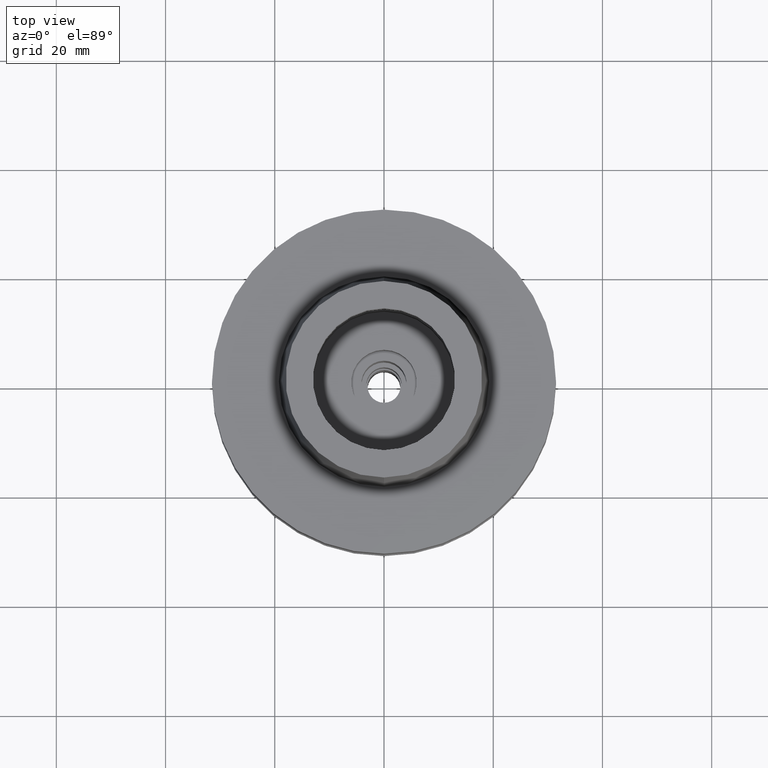
[diagram: clean part render]
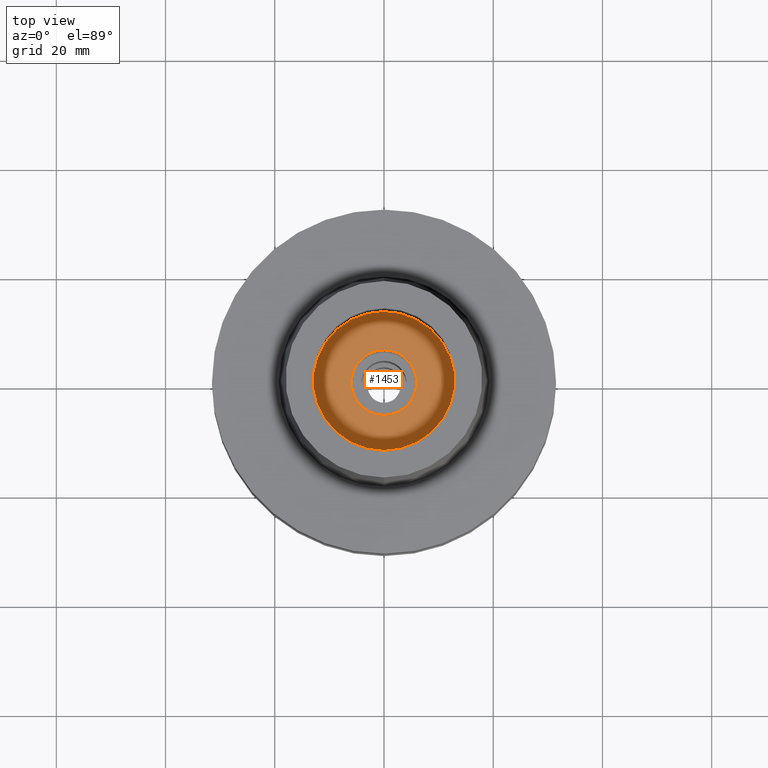
[diagram: same view with one face highlighted and labeled with its STEP entity id]
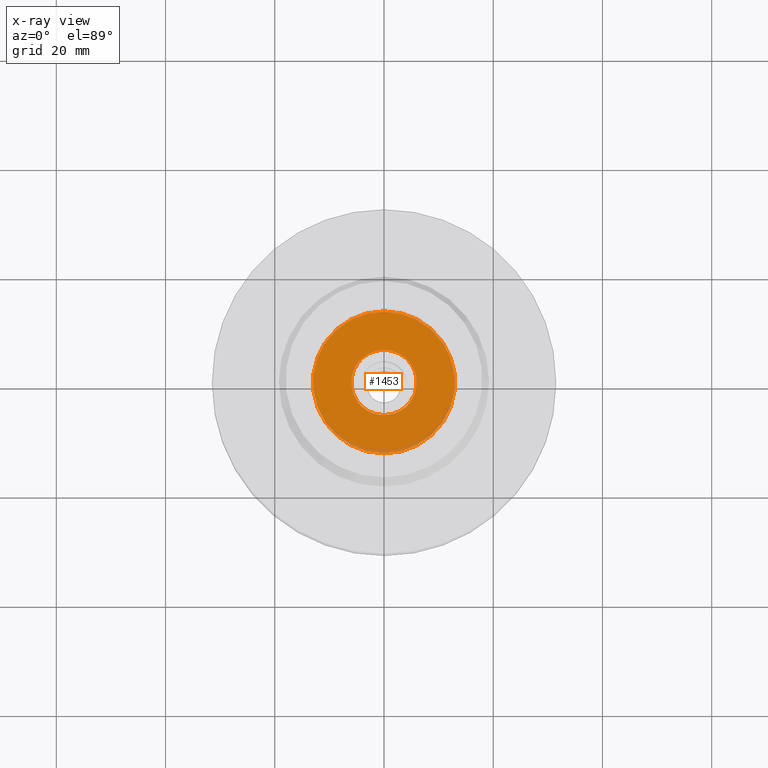
[diagram: x-ray of the same camera — body ghosted, the highlighted face saturated]
A machine part, top view. The second image highlights one B-rep face of the part: STEP entity #1453.
The next image is the same camera in x-ray: the body ghosted, the highlighted face saturated — about 4% of this face is hidden behind the body in this view.
In plain terms, the highlighted planar face has unit normal (0, 0, -1).
Its self-contained STEP definition (entity closure, byte-faithful):
#582=CARTESIAN_POINT('',(0.E0,0.E0,-9.95E0));
#583=DIRECTION('',(0.E0,0.E0,-1.E0));
#584=DIRECTION('',(0.E0,-1.E0,0.E0));
#585=AXIS2_PLACEMENT_3D('',#582,#583,#584);
#590=CARTESIAN_POINT('',(0.E0,0.E0,-9.95E0));
#591=DIRECTION('',(0.E0,0.E0,-1.E0));
#592=DIRECTION('',(0.E0,1.E0,0.E0));
#593=AXIS2_PLACEMENT_3D('',#590,#591,#592);
#598=CARTESIAN_POINT('',(0.E0,0.E0,-9.95E0));
#599=DIRECTION('',(0.E0,0.E0,1.E0));
#600=DIRECTION('',(0.E0,-1.E0,0.E0));
#601=AXIS2_PLACEMENT_3D('',#598,#599,#600);
#606=CARTESIAN_POINT('',(0.E0,0.E0,-9.95E0));
#607=DIRECTION('',(0.E0,0.E0,1.E0));
#608=DIRECTION('',(0.E0,1.E0,0.E0));
#609=AXIS2_PLACEMENT_3D('',#606,#607,#608);
#808=CARTESIAN_POINT('',(0.E0,1.3E1,-9.95E0));
#809=VERTEX_POINT('',#808);
#810=CARTESIAN_POINT('',(0.E0,-1.3E1,-9.95E0));
#811=VERTEX_POINT('',#810);
#812=CARTESIAN_POINT('',(0.E0,-6.E0,-9.95E0));
#813=CARTESIAN_POINT('',(0.E0,6.E0,-9.95E0));
#814=VERTEX_POINT('',#812);
#815=VERTEX_POINT('',#813);
#1438=CARTESIAN_POINT('',(0.E0,0.E0,-9.95E0));
#1439=DIRECTION('',(0.E0,0.E0,-1.E0));
#1440=DIRECTION('',(0.E0,-1.E0,0.E0));
#1441=AXIS2_PLACEMENT_3D('',#1438,#1439,#1440);
#1442=PLANE('',#1441);
#1444=ORIENTED_EDGE('',*,*,#1443,.T.);
#1446=ORIENTED_EDGE('',*,*,#1445,.T.);
#1447=EDGE_LOOP('',(#1444,#1446));
#1448=FACE_OUTER_BOUND('',#1447,.F.);
#1449=ORIENTED_EDGE('',*,*,#1431,.T.);
#1450=ORIENTED_EDGE('',*,*,#1420,.T.);
#1451=EDGE_LOOP('',(#1449,#1450));
#1452=FACE_BOUND('',#1451,.F.);
#586=CIRCLE('',#585,1.3E1);
#594=CIRCLE('',#593,1.3E1);
#602=CIRCLE('',#601,6.E0);
#610=CIRCLE('',#609,6.E0);
#1420=EDGE_CURVE('',#815,#814,#610,.T.);
#1431=EDGE_CURVE('',#814,#815,#602,.T.);
#1443=EDGE_CURVE('',#811,#809,#586,.T.);
#1445=EDGE_CURVE('',#809,#811,#594,.T.);
#1453=ADVANCED_FACE('',(#1448,#1452),#1442,.F.);